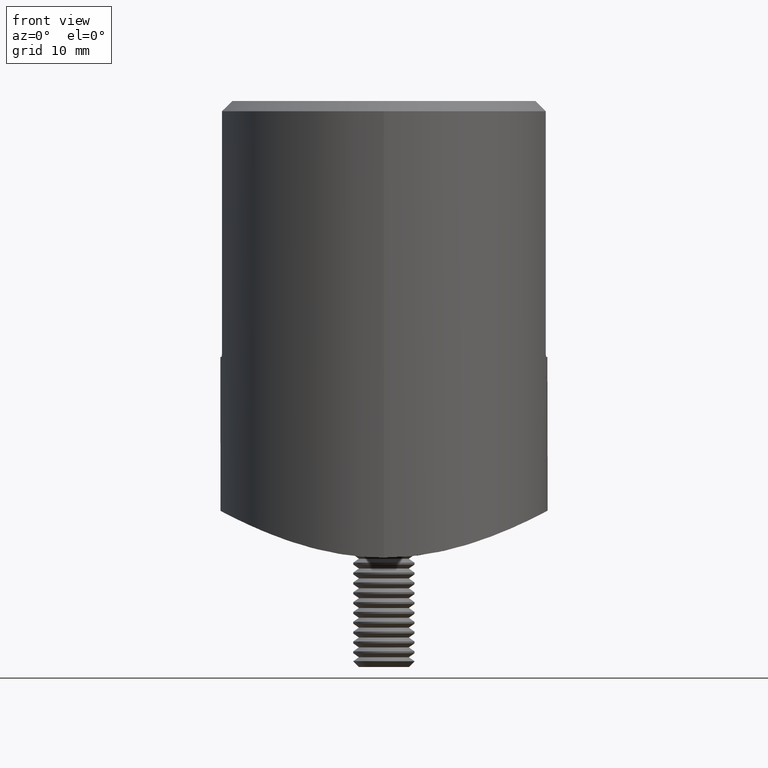
[diagram: clean part render]
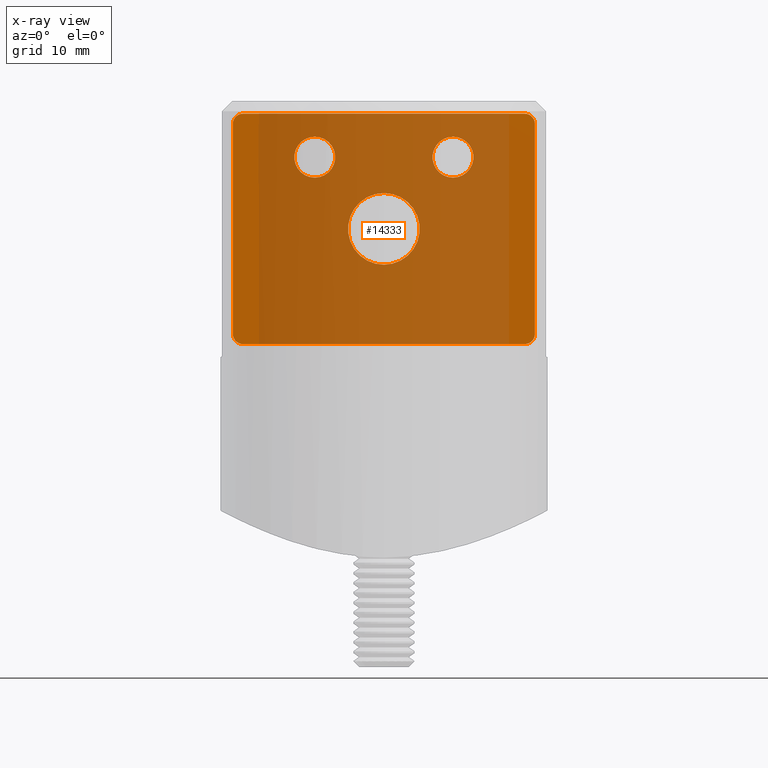
[diagram: x-ray — body ghosted, one internal face saturated and labeled with its STEP entity id]
A machine part, front view, then the same camera in x-ray: the body is ghosted and one INTERNAL B-rep face — a face not visible from any outside direction — is saturated and labeled: STEP entity #14333.
In plain terms, the highlighted planar face has unit normal (0, 1, 0).
Its self-contained STEP definition (entity closure, byte-faithful):
#579 = EDGE_CURVE ( 'NONE', #17622, #15241, #15930, .T. ) ;
#769 = FACE_BOUND ( 'NONE', #9848, .T. ) ;
#843 = LINE ( 'NONE', #11059, #6697 ) ;
#1260 = PLANE ( 'NONE',  #20210 ) ;
#1298 = CARTESIAN_POINT ( 'NONE',  ( 14.75000000000000000, 1.000000000000000000, 10.24999999999999822 ) ) ;
#1363 = VERTEX_POINT ( 'NONE', #10589 ) ;
#1755 = VERTEX_POINT ( 'NONE', #11518 ) ;
#2016 = VERTEX_POINT ( 'NONE', #4906 ) ;
#2764 = EDGE_CURVE ( 'NONE', #10425, #6711, #843, .T. ) ;
#3041 = DIRECTION ( 'NONE',  ( 0.000000000000000000, -1.000000000000000000, 0.000000000000000000 ) ) ;
#3100 = EDGE_CURVE ( 'NONE', #2016, #2016, #13079, .T. ) ;
#3104 = EDGE_CURVE ( 'NONE', #13718, #13718, #9511, .T. ) ;
#3128 = VERTEX_POINT ( 'NONE', #11624 ) ;
#3452 = CARTESIAN_POINT ( 'NONE',  ( 0.000000000000000000, 1.000000000000000000, 0.000000000000000000 ) ) ;
#3678 = ORIENTED_EDGE ( 'NONE', *, *, #7948, .T. ) ;
#3692 = EDGE_CURVE ( 'NONE', #1755, #1755, #20163, .T. ) ;
#4056 = ORIENTED_EDGE ( 'NONE', *, *, #19401, .T. ) ;
#4226 = LINE ( 'NONE', #12751, #11335 ) ;
#4311 = DIRECTION ( 'NONE',  ( 1.541976423090496126E-16, -0.000000000000000000, 1.000000000000000000 ) ) ;
#4328 = EDGE_CURVE ( 'NONE', #1363, #15908, #18634, .T. ) ;
#4359 = FACE_BOUND ( 'NONE', #9684, .T. ) ;
#4367 = CARTESIAN_POINT ( 'NONE',  ( 14.74999999999999645, 1.000000000000000000, -10.24999999999999289 ) ) ;
#4514 = CARTESIAN_POINT ( 'NONE',  ( -14.75000000000000000, 1.000000000000000000, 11.24999999999999822 ) ) ;
#4740 = ORIENTED_EDGE ( 'NONE', *, *, #3692, .F. ) ;
#4837 = CARTESIAN_POINT ( 'NONE',  ( 6.750000000000002665, 1.000000000000000000, 4.999999999999995559 ) ) ;
#4906 = CARTESIAN_POINT ( 'NONE',  ( 0.000000000000000000, 1.000000000000000000, 3.499999999999999556 ) ) ;
#5079 = DIRECTION ( 'NONE',  ( 0.000000000000000000, 0.000000000000000000, 1.000000000000000000 ) ) ;
#5331 = CARTESIAN_POINT ( 'NONE',  ( -13.75000000000000178, 1.000000000000000000, -11.24999999999999112 ) ) ;
#5553 = AXIS2_PLACEMENT_3D ( 'NONE', #13252, #9978, #18100 ) ;
#5955 = AXIS2_PLACEMENT_3D ( 'NONE', #17144, #6034, #18766 ) ;
#6034 = DIRECTION ( 'NONE',  ( -0.000000000000000000, 1.000000000000000000, 0.000000000000000000 ) ) ;
#6044 = DIRECTION ( 'NONE',  ( -0.000000000000000000, 1.000000000000000000, 0.000000000000000000 ) ) ;
#6300 = CARTESIAN_POINT ( 'NONE',  ( 0.000000000000000000, 1.000000000000000000, 0.000000000000000000 ) ) ;
#6481 = DIRECTION ( 'NONE',  ( -0.000000000000000000, 1.000000000000000000, 0.000000000000000000 ) ) ;
#6672 = CARTESIAN_POINT ( 'NONE',  ( 13.74999999999999822, 1.000000000000000000, 11.24999999999999822 ) ) ;
#6697 = VECTOR ( 'NONE', #19292, 1000.000000000000000 ) ;
#6711 = VERTEX_POINT ( 'NONE', #4367 ) ;
#7244 = ORIENTED_EDGE ( 'NONE', *, *, #8880, .T. ) ;
#7336 = EDGE_LOOP ( 'NONE', ( #4740 ) ) ;
#7668 = CARTESIAN_POINT ( 'NONE',  ( 13.74999999999999467, 1.000000000000000000, -10.25000000000000178 ) ) ;
#7732 = CARTESIAN_POINT ( 'NONE',  ( 13.74999999999999822, 1.000000000000000000, 10.24999999999999822 ) ) ;
#7923 = CARTESIAN_POINT ( 'NONE',  ( -14.75000000000000355, 1.000000000000000000, -10.24999999999998579 ) ) ;
#7948 = EDGE_CURVE ( 'NONE', #6711, #1363, #11872, .T. ) ;
#7990 = ORIENTED_EDGE ( 'NONE', *, *, #4328, .T. ) ;
#8190 = DIRECTION ( 'NONE',  ( 0.000000000000000000, 0.000000000000000000, -1.000000000000000000 ) ) ;
#8788 = ORIENTED_EDGE ( 'NONE', *, *, #20679, .T. ) ;
#8880 = EDGE_CURVE ( 'NONE', #3128, #11512, #4226, .T. ) ;
#9164 = ORIENTED_EDGE ( 'NONE', *, *, #19645, .T. ) ;
#9511 = CIRCLE ( 'NONE', #5553, 2.000000000000000000 ) ;
#9684 = EDGE_LOOP ( 'NONE', ( #20276 ) ) ;
#9848 = EDGE_LOOP ( 'NONE', ( #10280 ) ) ;
#9978 = DIRECTION ( 'NONE',  ( -0.000000000000000000, 1.000000000000000000, 0.000000000000000000 ) ) ;
#10064 = CARTESIAN_POINT ( 'NONE',  ( -14.75000000000000000, 1.000000000000000000, 10.24999999999999822 ) ) ;
#10280 = ORIENTED_EDGE ( 'NONE', *, *, #3100, .F. ) ;
#10319 = AXIS2_PLACEMENT_3D ( 'NONE', #3452, #14817, #5079 ) ;
#10425 = VERTEX_POINT ( 'NONE', #1298 ) ;
#10459 = FACE_BOUND ( 'NONE', #7336, .T. ) ;
#10589 = CARTESIAN_POINT ( 'NONE',  ( 13.74999999999999467, 1.000000000000000000, -11.25000000000000178 ) ) ;
#10888 = ORIENTED_EDGE ( 'NONE', *, *, #2764, .T. ) ;
#10946 = DIRECTION ( 'NONE',  ( -0.000000000000000000, 1.000000000000000000, 0.000000000000000000 ) ) ;
#11059 = CARTESIAN_POINT ( 'NONE',  ( 14.75000000000000000, 1.000000000000000000, 11.24999999999999822 ) ) ;
#11335 = VECTOR ( 'NONE', #16509, 1000.000000000000000 ) ;
#11512 = VERTEX_POINT ( 'NONE', #6672 ) ;
#11518 = CARTESIAN_POINT ( 'NONE',  ( -6.749999999999997335, 1.000000000000000000, 4.999999999999997335 ) ) ;
#11624 = CARTESIAN_POINT ( 'NONE',  ( -13.74999999999999822, 1.000000000000000000, 11.24999999999999822 ) ) ;
#11872 = CIRCLE ( 'NONE', #16093, 1.000000000000000888 ) ;
#12384 = DIRECTION ( 'NONE',  ( -0.000000000000000000, 1.000000000000000000, 0.000000000000000000 ) ) ;
#12653 = DIRECTION ( 'NONE',  ( 0.000000000000000000, 0.000000000000000000, -1.000000000000000000 ) ) ;
#12751 = CARTESIAN_POINT ( 'NONE',  ( -14.75000000000000000, 1.000000000000000000, 11.24999999999999822 ) ) ;
#13079 = CIRCLE ( 'NONE', #10319, 3.499999999999999556 ) ;
#13143 = CIRCLE ( 'NONE', #13305, 1.000000000000000888 ) ;
#13156 = CIRCLE ( 'NONE', #5955, 0.9999999999999991118 ) ;
#13252 = CARTESIAN_POINT ( 'NONE',  ( 6.750000000000002665, 1.000000000000000000, 6.999999999999995559 ) ) ;
#13305 = AXIS2_PLACEMENT_3D ( 'NONE', #7732, #12384, #12653 ) ;
#13718 = VERTEX_POINT ( 'NONE', #4837 ) ;
#13813 = DIRECTION ( 'NONE',  ( -1.000000000000000000, -0.000000000000000000, 3.528251137579946599E-16 ) ) ;
#14333 = ADVANCED_FACE ( 'NONE', ( #15024, #769, #10459, #4359 ), #1260, .F. ) ;
#14547 = AXIS2_PLACEMENT_3D ( 'NONE', #16175, #6481, #8190 ) ;
#14817 = DIRECTION ( 'NONE',  ( 0.000000000000000000, 1.000000000000000000, 0.000000000000000000 ) ) ;
#15024 = FACE_OUTER_BOUND ( 'NONE', #21098, .T. ) ;
#15241 = VERTEX_POINT ( 'NONE', #10064 ) ;
#15413 = ORIENTED_EDGE ( 'NONE', *, *, #579, .T. ) ;
#15609 = VECTOR ( 'NONE', #13813, 1000.000000000000000 ) ;
#15908 = VERTEX_POINT ( 'NONE', #5331 ) ;
#15930 = LINE ( 'NONE', #4514, #20493 ) ;
#16093 = AXIS2_PLACEMENT_3D ( 'NONE', #7668, #6044, #17440 ) ;
#16175 = CARTESIAN_POINT ( 'NONE',  ( -13.74999999999999822, 1.000000000000000000, 10.24999999999999822 ) ) ;
#16343 = AXIS2_PLACEMENT_3D ( 'NONE', #20528, #10946, #17432 ) ;
#16509 = DIRECTION ( 'NONE',  ( 1.000000000000000000, 0.000000000000000000, 0.000000000000000000 ) ) ;
#17056 = CIRCLE ( 'NONE', #14547, 1.000000000000000888 ) ;
#17144 = CARTESIAN_POINT ( 'NONE',  ( -13.75000000000000178, 1.000000000000000000, -10.24999999999999289 ) ) ;
#17432 = DIRECTION ( 'NONE',  ( 0.000000000000000000, 0.000000000000000000, -1.000000000000000000 ) ) ;
#17440 = DIRECTION ( 'NONE',  ( -1.734723475976805517E-15, 0.000000000000000000, -1.000000000000000000 ) ) ;
#17622 = VERTEX_POINT ( 'NONE', #7923 ) ;
#18100 = DIRECTION ( 'NONE',  ( 0.000000000000000000, 0.000000000000000000, -1.000000000000000000 ) ) ;
#18634 = LINE ( 'NONE', #20484, #15609 ) ;
#18766 = DIRECTION ( 'NONE',  ( 0.000000000000000000, 0.000000000000000000, -1.000000000000000000 ) ) ;
#19232 = DIRECTION ( 'NONE',  ( 0.000000000000000000, 0.000000000000000000, -1.000000000000000000 ) ) ;
#19292 = DIRECTION ( 'NONE',  ( -1.541976423090495387E-16, 0.000000000000000000, -1.000000000000000000 ) ) ;
#19401 = EDGE_CURVE ( 'NONE', #15908, #17622, #13156, .T. ) ;
#19645 = EDGE_CURVE ( 'NONE', #11512, #10425, #13143, .T. ) ;
#20163 = CIRCLE ( 'NONE', #16343, 2.000000000000000000 ) ;
#20210 = AXIS2_PLACEMENT_3D ( 'NONE', #6300, #3041, #19232 ) ;
#20276 = ORIENTED_EDGE ( 'NONE', *, *, #3104, .F. ) ;
#20484 = CARTESIAN_POINT ( 'NONE',  ( -14.75000000000000355, 1.000000000000000000, -11.24999999999999112 ) ) ;
#20493 = VECTOR ( 'NONE', #4311, 1000.000000000000000 ) ;
#20528 = CARTESIAN_POINT ( 'NONE',  ( -6.749999999999997335, 1.000000000000000000, 6.999999999999997335 ) ) ;
#20679 = EDGE_CURVE ( 'NONE', #15241, #3128, #17056, .T. ) ;
#21098 = EDGE_LOOP ( 'NONE', ( #7990, #4056, #15413, #8788, #7244, #9164, #10888, #3678 ) ) ;